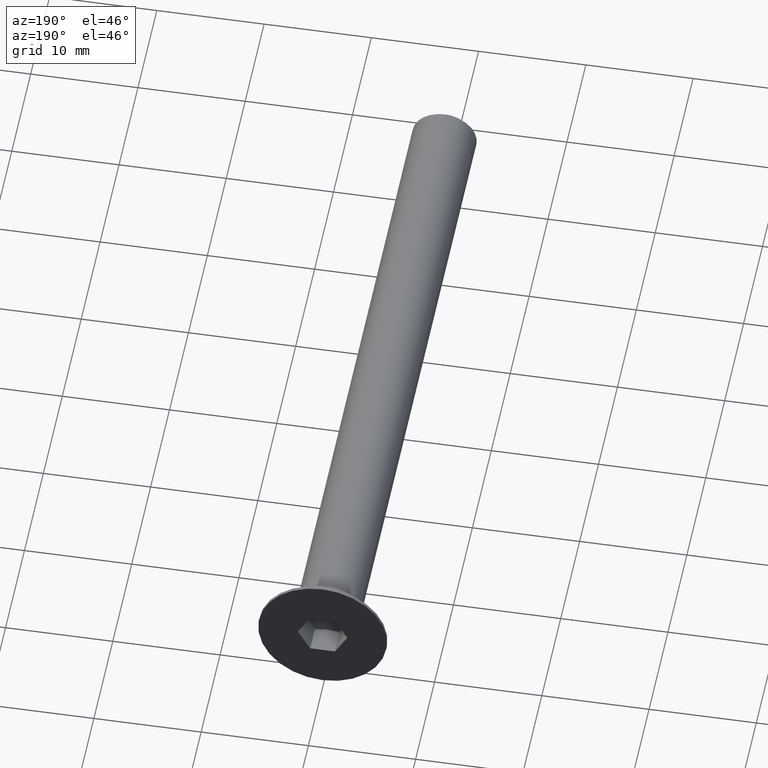
[diagram: clean part render]
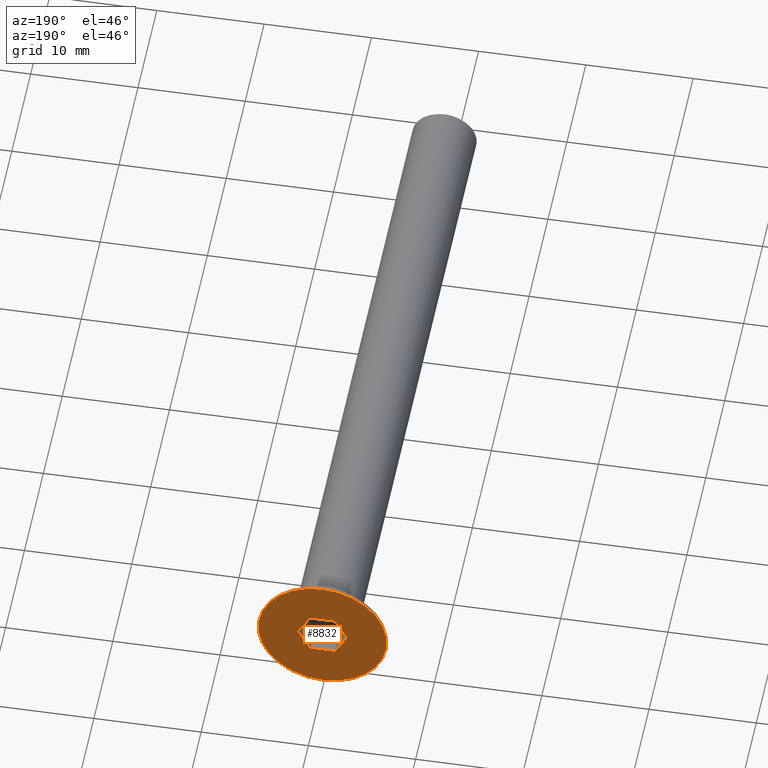
[diagram: same view with one face highlighted and labeled with its STEP entity id]
A machine part, auxiliary view. The second image highlights one B-rep face of the part: STEP entity #8832.
In plain terms, the highlighted planar face has unit normal (0, 1, 0).
Its self-contained STEP definition (entity closure, byte-faithful):
#76 = CARTESIAN_POINT ( 'NONE',  ( -2.309401076758503368, 32.50000000000000000, -8.409889179519686675E-16 ) ) ;
#187 = VERTEX_POINT ( 'NONE', #6062 ) ;
#204 = DIRECTION ( 'NONE',  ( 0.000000000000000000, 1.000000000000000000, 0.000000000000000000 ) ) ;
#323 = EDGE_CURVE ( 'NONE', #3409, #8744, #3684, .T. ) ;
#593 = FACE_OUTER_BOUND ( 'NONE', #4552, .T. ) ;
#609 = CARTESIAN_POINT ( 'NONE',  ( 2.309401076758503368, 32.50000000000000000, -4.587941353113089199E-16 ) ) ;
#750 = ORIENTED_EDGE ( 'NONE', *, *, #6687, .F. ) ;
#785 = LINE ( 'NONE', #1122, #11585 ) ;
#1102 = LINE ( 'NONE', #12336, #5035 ) ;
#1122 = CARTESIAN_POINT ( 'NONE',  ( -1.154700538379251240, 32.50000000000000000, 2.000000000000000000 ) ) ;
#1178 = VECTOR ( 'NONE', #9957, 1000.000000000000000 ) ;
#1380 = PLANE ( 'NONE',  #14976 ) ;
#1425 = VECTOR ( 'NONE', #8467, 1000.000000000000227 ) ;
#1521 = ORIENTED_EDGE ( 'NONE', *, *, #15442, .F. ) ;
#1894 = CARTESIAN_POINT ( 'NONE',  ( 1.154700538379250796, 32.50000000000000000, -2.000000000000000000 ) ) ;
#2113 = LINE ( 'NONE', #12357, #1178 ) ;
#2228 = CARTESIAN_POINT ( 'NONE',  ( -1.154700538379251240, 32.50000000000000000, 2.000000000000000444 ) ) ;
#2626 = CARTESIAN_POINT ( 'NONE',  ( 0.000000000000000000, 32.50000000000000000, -6.000000000000000000 ) ) ;
#3409 = VERTEX_POINT ( 'NONE', #7944 ) ;
#3684 = LINE ( 'NONE', #609, #14846 ) ;
#3863 = DIRECTION ( 'NONE',  ( 0.5000000000000000000, 0.000000000000000000, -0.8660254037844385966 ) ) ;
#4552 = EDGE_LOOP ( 'NONE', ( #11040 ) ) ;
#4961 = EDGE_LOOP ( 'NONE', ( #10966, #6841, #750, #6223, #1521, #9867 ) ) ;
#5035 = VECTOR ( 'NONE', #8746, 1000.000000000000000 ) ;
#5038 = VERTEX_POINT ( 'NONE', #5225 ) ;
#5225 = CARTESIAN_POINT ( 'NONE',  ( -1.154700538379251906, 32.50000000000000000, -2.000000000000000000 ) ) ;
#5533 = CARTESIAN_POINT ( 'NONE',  ( 1.154700538379251684, 32.50000000000000000, 1.999999999999999556 ) ) ;
#5770 = VECTOR ( 'NONE', #3863, 1000.000000000000227 ) ;
#6062 = CARTESIAN_POINT ( 'NONE',  ( -2.309401076758503368, 32.50000000000000000, -8.409889179519686675E-16 ) ) ;
#6223 = ORIENTED_EDGE ( 'NONE', *, *, #323, .F. ) ;
#6419 = CARTESIAN_POINT ( 'NONE',  ( 0.000000000000000000, 32.50000000000000000, 0.000000000000000000 ) ) ;
#6687 = EDGE_CURVE ( 'NONE', #8744, #5038, #2113, .T. ) ;
#6700 = VERTEX_POINT ( 'NONE', #2626 ) ;
#6841 = ORIENTED_EDGE ( 'NONE', *, *, #13785, .F. ) ;
#6925 = EDGE_CURVE ( 'NONE', #8326, #12008, #785, .T. ) ;
#7569 = AXIS2_PLACEMENT_3D ( 'NONE', #6419, #11183, #7603 ) ;
#7603 = DIRECTION ( 'NONE',  ( 0.000000000000000000, 0.000000000000000000, -1.000000000000000000 ) ) ;
#7944 = CARTESIAN_POINT ( 'NONE',  ( 2.309401076758503368, 32.50000000000000000, -4.587941353113089199E-16 ) ) ;
#8003 = EDGE_CURVE ( 'NONE', #187, #8326, #8482, .T. ) ;
#8227 = FACE_BOUND ( 'NONE', #4961, .T. ) ;
#8326 = VERTEX_POINT ( 'NONE', #2228 ) ;
#8467 = DIRECTION ( 'NONE',  ( 0.5000000000000000000, 0.000000000000000000, 0.8660254037844385966 ) ) ;
#8482 = LINE ( 'NONE', #76, #1425 ) ;
#8744 = VERTEX_POINT ( 'NONE', #1894 ) ;
#8746 = DIRECTION ( 'NONE',  ( -0.5000000000000001110, 0.000000000000000000, 0.8660254037844385966 ) ) ;
#8832 = ADVANCED_FACE ( 'NONE', ( #8227, #593 ), #1380, .T. ) ;
#8988 = DIRECTION ( 'NONE',  ( -0.5000000000000003331, 0.000000000000000000, -0.8660254037844383745 ) ) ;
#9867 = ORIENTED_EDGE ( 'NONE', *, *, #6925, .F. ) ;
#9957 = DIRECTION ( 'NONE',  ( -1.000000000000000000, 0.000000000000000000, 0.000000000000000000 ) ) ;
#10562 = CIRCLE ( 'NONE', #7569, 6.000000000000000000 ) ;
#10966 = ORIENTED_EDGE ( 'NONE', *, *, #8003, .F. ) ;
#11011 = CARTESIAN_POINT ( 'NONE',  ( 1.154700538379251684, 32.50000000000000000, 1.999999999999999556 ) ) ;
#11040 = ORIENTED_EDGE ( 'NONE', *, *, #15056, .F. ) ;
#11183 = DIRECTION ( 'NONE',  ( -0.000000000000000000, -1.000000000000000000, -0.000000000000000000 ) ) ;
#11585 = VECTOR ( 'NONE', #11788, 1000.000000000000000 ) ;
#11767 = CARTESIAN_POINT ( 'NONE',  ( 0.000000000000000000, 32.50000000000000000, 0.000000000000000000 ) ) ;
#11788 = DIRECTION ( 'NONE',  ( 1.000000000000000000, 0.000000000000000000, -1.877893248421449775E-16 ) ) ;
#12008 = VERTEX_POINT ( 'NONE', #5533 ) ;
#12336 = CARTESIAN_POINT ( 'NONE',  ( -1.154700538379251906, 32.50000000000000000, -2.000000000000000000 ) ) ;
#12357 = CARTESIAN_POINT ( 'NONE',  ( 1.154700538379250796, 32.50000000000000000, -2.000000000000000000 ) ) ;
#13010 = LINE ( 'NONE', #11011, #5770 ) ;
#13785 = EDGE_CURVE ( 'NONE', #5038, #187, #1102, .T. ) ;
#14846 = VECTOR ( 'NONE', #8988, 1000.000000000000227 ) ;
#14976 = AXIS2_PLACEMENT_3D ( 'NONE', #11767, #204, #15352 ) ;
#15056 = EDGE_CURVE ( 'NONE', #6700, #6700, #10562, .T. ) ;
#15352 = DIRECTION ( 'NONE',  ( 0.000000000000000000, -0.000000000000000000, 1.000000000000000000 ) ) ;
#15442 = EDGE_CURVE ( 'NONE', #12008, #3409, #13010, .T. ) ;